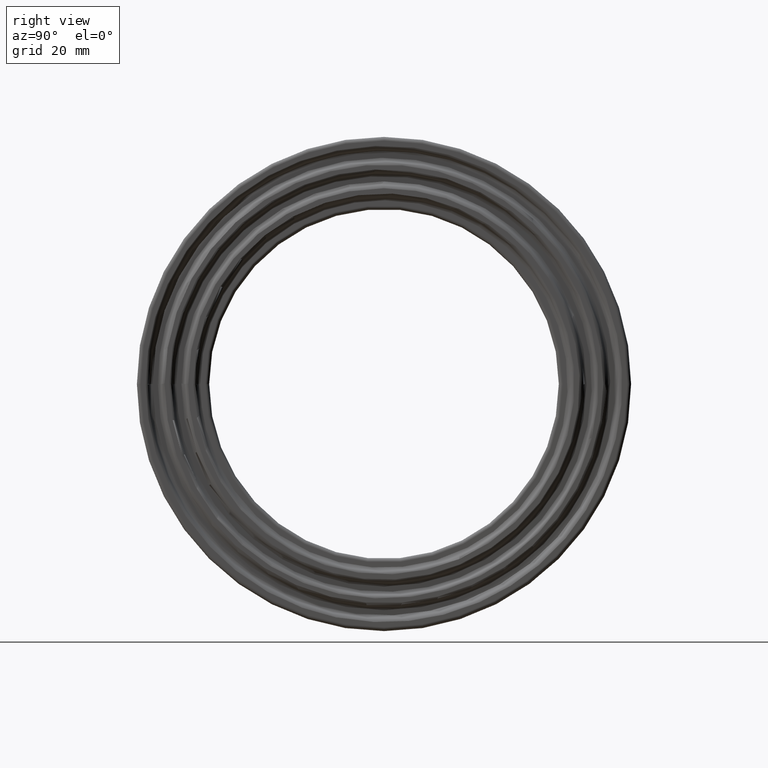
[diagram: clean part render]
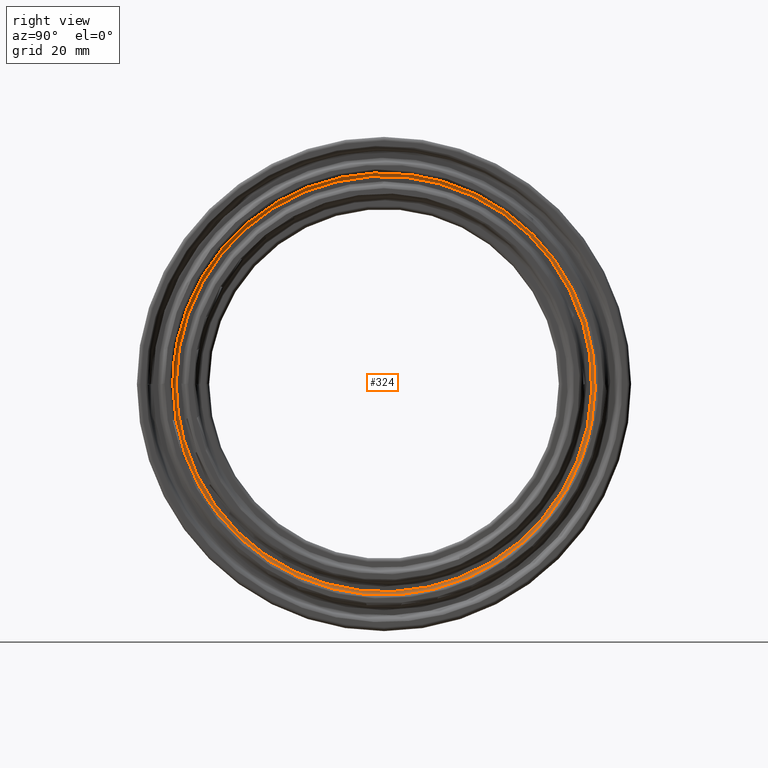
[diagram: same view with one face highlighted and labeled with its STEP entity id]
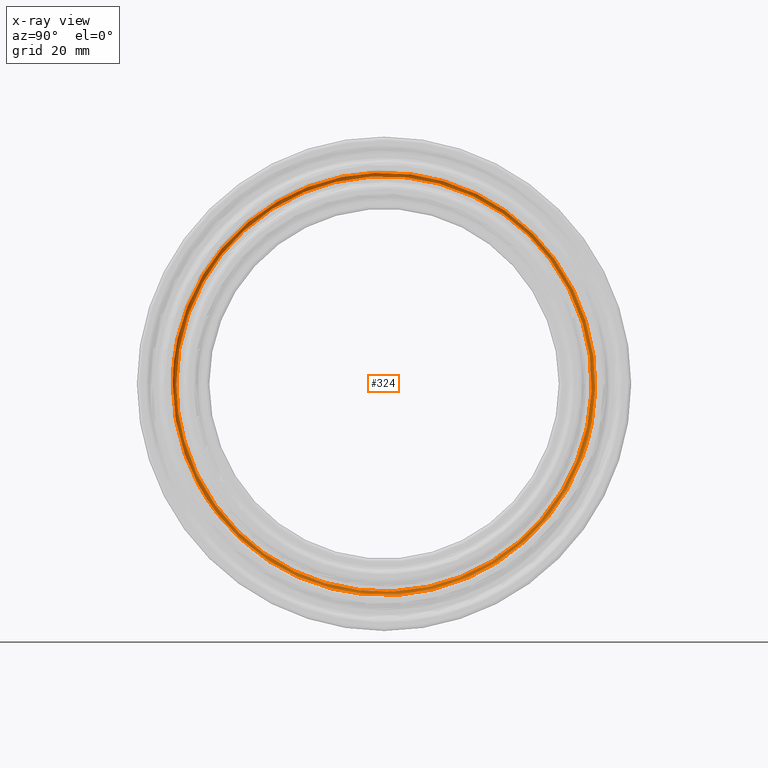
[diagram: x-ray of the same camera — body ghosted, the highlighted face saturated]
A machine part, right view. The second image highlights one B-rep face of the part: STEP entity #324.
The next image is the same camera in x-ray: the body ghosted, the highlighted face saturated — about 0% of this face is hidden behind the body in this view.
In plain terms, the highlighted face is a freeform B-spline surface patch.
Its self-contained STEP definition (entity closure, byte-faithful):
#19=B_SPLINE_SURFACE_WITH_KNOTS('',3,3,((#1938,#1939,#1940,#1941,#1942,
#1943,#1944,#1945,#1946,#1947,#1948,#1949,#1950,#1951,#1952,#1953,#1954,
#1955,#1956,#1957,#1958,#1959,#1960,#1961,#1962,#1963,#1964,#1965,#1966,
#1967,#1968,#1969,#1970,#1971,#1972,#1973,#1974,#1975,#1976,#1977,#1978,
#1979,#1980),(#1981,#1982,#1983,#1984,#1985,#1986,#1987,#1988,#1989,#1990,
#1991,#1992,#1993,#1994,#1995,#1996,#1997,#1998,#1999,#2000,#2001,#2002,
#2003,#2004,#2005,#2006,#2007,#2008,#2009,#2010,#2011,#2012,#2013,#2014,
#2015,#2016,#2017,#2018,#2019,#2020,#2021,#2022,#2023),(#2024,#2025,#2026,
#2027,#2028,#2029,#2030,#2031,#2032,#2033,#2034,#2035,#2036,#2037,#2038,
#2039,#2040,#2041,#2042,#2043,#2044,#2045,#2046,#2047,#2048,#2049,#2050,
#2051,#2052,#2053,#2054,#2055,#2056,#2057,#2058,#2059,#2060,#2061,#2062,
#2063,#2064,#2065,#2066),(#2067,#2068,#2069,#2070,#2071,#2072,#2073,#2074,
#2075,#2076,#2077,#2078,#2079,#2080,#2081,#2082,#2083,#2084,#2085,#2086,
#2087,#2088,#2089,#2090,#2091,#2092,#2093,#2094,#2095,#2096,#2097,#2098,
#2099,#2100,#2101,#2102,#2103,#2104,#2105,#2106,#2107,#2108,#2109),(#2110,
#2111,#2112,#2113,#2114,#2115,#2116,#2117,#2118,#2119,#2120,#2121,#2122,
#2123,#2124,#2125,#2126,#2127,#2128,#2129,#2130,#2131,#2132,#2133,#2134,
#2135,#2136,#2137,#2138,#2139,#2140,#2141,#2142,#2143,#2144,#2145,#2146,
#2147,#2148,#2149,#2150,#2151,#2152)),.UNSPECIFIED.,.F.,.T.,.F.,(4,1,4),
(4,1,1,1,1,1,1,1,1,1,1,1,1,1,1,1,1,1,1,1,1,1,1,1,1,1,1,1,1,1,1,1,1,1,1,
1,1,1,1,1,4),(0.,0.5,1.),(24.6803434564181,26.4432251318766,28.206106807335,
29.9689884827935,31.7318701582519,32.9071246085575,34.0823790588632,36.4328879594744,
37.60814240978,38.7833968600857,40.3504027938265,41.1339057606969,42.3091602110025,
43.4844146613082,44.6596691116138,45.8349235619194,48.1854324625307,50.5359413631419,
51.7111958134475,52.8864502637532,54.6493319392116,56.4122136146701,58.1750952901285,
59.0565361278577,59.9379769655869,61.2601382221808,62.5822994787746,63.4637403165038,
64.345181154233,65.2266219919623,65.6673424108269,66.9895036674207,68.7523853428791,
69.4134659711761,70.5152670183376,71.1763476466345,71.3967078560668,72.278148693796,
73.1595895315252,73.3799497409576,74.0410303692545),.UNSPECIFIED.);
#32=B_SPLINE_CURVE_WITH_KNOTS('',3,(#1895,#1896,#1897,#1898,#1899,#1900,
#1901,#1902,#1903,#1904,#1905,#1906,#1907,#1908,#1909,#1910,#1911,#1912,
#1913,#1914,#1915,#1916,#1917,#1918,#1919,#1920,#1921,#1922,#1923,#1924,
#1925,#1926,#1927,#1928,#1929,#1930,#1931,#1932,#1933,#1934,#1935,#1936,
#1937),.UNSPECIFIED.,.T.,.F.,(4,1,1,1,1,1,1,1,1,1,1,1,1,1,1,1,1,1,1,1,1,
1,1,1,1,1,1,1,1,1,1,1,1,1,1,1,1,1,1,1,4),(-74.0410303692545,-73.3799497409576,
-73.1595895315252,-72.278148693796,-71.3967078560668,-71.1763476466345,
-70.5152670183376,-69.4134659711761,-68.7523853428791,-66.9895036674207,
-65.6673424108269,-65.2266219919623,-64.345181154233,-63.4637403165038,
-62.5822994787746,-61.2601382221808,-59.9379769655869,-59.0565361278577,
-58.1750952901285,-56.4122136146701,-54.6493319392116,-52.8864502637532,
-51.7111958134475,-50.5359413631419,-48.1854324625307,-45.8349235619194,
-44.6596691116138,-43.4844146613082,-42.3091602110025,-41.1339057606969,
-40.3504027938265,-38.7833968600857,-37.60814240978,-36.4328879594744,-34.0823790588632,
-32.9071246085575,-31.7318701582519,-29.9689884827935,-28.206106807335,
-26.4432251318766,-24.6803434564181),.UNSPECIFIED.);
#33=B_SPLINE_CURVE_WITH_KNOTS('',3,(#2155,#2156,#2157,#2158,#2159,#2160,
#2161,#2162,#2163,#2164,#2165,#2166,#2167,#2168,#2169,#2170,#2171,#2172,
#2173,#2174,#2175,#2176,#2177,#2178,#2179,#2180,#2181,#2182,#2183,#2184,
#2185,#2186,#2187,#2188,#2189,#2190,#2191,#2192,#2193,#2194,#2195,#2196,
#2197),.UNSPECIFIED.,.T.,.F.,(4,1,1,1,1,1,1,1,1,1,1,1,1,1,1,1,1,1,1,1,1,
1,1,1,1,1,1,1,1,1,1,1,1,1,1,1,1,1,1,1,4),(24.6803434564181,26.4432251318766,
28.206106807335,29.9689884827935,31.7318701582519,32.9071246085575,34.0823790588632,
36.4328879594744,37.60814240978,38.7833968600857,40.3504027938265,41.1339057606969,
42.3091602110025,43.4844146613082,44.6596691116138,45.8349235619194,48.1854324625307,
50.5359413631419,51.7111958134475,52.8864502637532,54.6493319392116,56.4122136146701,
58.1750952901285,59.0565361278577,59.9379769655869,61.2601382221808,62.5822994787746,
63.4637403165038,64.345181154233,65.2266219919623,65.6673424108269,66.9895036674207,
68.7523853428791,69.4134659711761,70.5152670183376,71.1763476466345,71.3967078560668,
72.278148693796,73.1595895315252,73.3799497409576,74.0410303692545),
 .UNSPECIFIED.);
#85=FACE_OUTER_BOUND('',#128,.T.);
#128=EDGE_LOOP('',(#275,#276,#277,#278));
#162=CIRCLE('',#367,1.40000000000002);
#189=VERTEX_POINT('',#1894);
#190=VERTEX_POINT('',#2153);
#221=EDGE_CURVE('',#189,#189,#32,.T.);
#222=EDGE_CURVE('',#190,#189,#162,.T.);
#223=EDGE_CURVE('',#190,#190,#33,.T.);
#275=ORIENTED_EDGE('',*,*,#222,.T.);
#276=ORIENTED_EDGE('',*,*,#221,.T.);
#277=ORIENTED_EDGE('',*,*,#222,.F.);
#278=ORIENTED_EDGE('',*,*,#223,.T.);
#324=ADVANCED_FACE('',(#85),#19,.T.);
#367=AXIS2_PLACEMENT_3D('',#2154,#447,#448);
#447=DIRECTION('center_axis',(0.,0.00081182891062912,-0.999999670466856));
#448=DIRECTION('ref_axis',(-0.357142857142856,-0.9340494658155,-0.000758288610187939));
#1894=CARTESIAN_POINT('',(80.2,-79.0346345893353,-0.0641626224438236));
#1895=CARTESIAN_POINT('Ctrl Pts',(80.2,-79.0359069899736,-0.0636611747398195));
#1896=CARTESIAN_POINT('Ctrl Pts',(80.2,-79.0344235117402,2.14221662926721));
#1897=CARTESIAN_POINT('Ctrl Pts',(80.2,-78.916551578168,5.08110077902834));
#1898=CARTESIAN_POINT('Ctrl Pts',(80.2,-78.3432882024206,10.96529811685));
#1899=CARTESIAN_POINT('Ctrl Pts',(80.2,-77.2320801043647,17.5567382726492));
#1900=CARTESIAN_POINT('Ctrl Pts',(80.2,-75.3849196494802,23.9805777669698));
#1901=CARTESIAN_POINT('Ctrl Pts',(80.2,-73.3583369981146,29.5316094741855));
#1902=CARTESIAN_POINT('Ctrl Pts',(80.2,-70.7454806945997,35.6080453384973));
#1903=CARTESIAN_POINT('Ctrl Pts',(80.2,-66.711261189691,42.7024603909406));
#1904=CARTESIAN_POINT('Ctrl Pts',(80.2,-59.6906670431926,52.3107401768676));
#1905=CARTESIAN_POINT('Ctrl Pts',(80.2000000000001,-50.8230663103475,61.1924456219727));
#1906=CARTESIAN_POINT('Ctrl Pts',(80.1999999999999,-40.9131734396469,67.8348780980478));
#1907=CARTESIAN_POINT('Ctrl Pts',(80.2,-33.014929075914,71.9139861634977));
#1908=CARTESIAN_POINT('Ctrl Pts',(80.2000000000001,-26.222776174393,74.7314818975554));
#1909=CARTESIAN_POINT('Ctrl Pts',(80.2,-17.6875011933513,77.2035831813416));
#1910=CARTESIAN_POINT('Ctrl Pts',(80.2,-7.40327522892165,78.9509696361756));
#1911=CARTESIAN_POINT('Ctrl Pts',(80.2,4.38475743710647,79.2830174020007));
#1912=CARTESIAN_POINT('Ctrl Pts',(80.2,16.1641106870459,77.6402585901341));
#1913=CARTESIAN_POINT('Ctrl Pts',(80.2,26.1637598707477,74.7478268901621));
#1914=CARTESIAN_POINT('Ctrl Pts',(80.2000000000001,37.0311642579609,70.2683307201949));
#1915=CARTESIAN_POINT('Ctrl Pts',(80.1999999999999,49.7189688776017,62.2876840337266));
#1916=CARTESIAN_POINT('Ctrl Pts',(80.2000000000001,62.2662716497745,49.7487329383965));
#1917=CARTESIAN_POINT('Ctrl Pts',(80.1999999999999,70.7746053378915,36.2254306596438));
#1918=CARTESIAN_POINT('Ctrl Pts',(80.2000000000002,75.7857571141521,23.4303029109988));
#1919=CARTESIAN_POINT('Ctrl Pts',(80.1999999999999,79.3406261111925,7.93189650962315));
#1920=CARTESIAN_POINT('Ctrl Pts',(80.2,79.3151122607713,-11.9083727558933));
#1921=CARTESIAN_POINT('Ctrl Pts',(80.2,73.5046636802644,-30.8716798786516));
#1922=CARTESIAN_POINT('Ctrl Pts',(80.1999999999999,65.6392156018303,-44.5483069566757));
#1923=CARTESIAN_POINT('Ctrl Pts',(80.2000000000001,58.211199088035,-53.9034809174248));
#1924=CARTESIAN_POINT('Ctrl Pts',(80.1999999999999,49.5928442488041,-61.9086255455264));
#1925=CARTESIAN_POINT('Ctrl Pts',(80.2000000000001,40.8591232596019,-67.9063281318061));
#1926=CARTESIAN_POINT('Ctrl Pts',(80.2,30.3017540566498,-73.3165261919301));
#1927=CARTESIAN_POINT('Ctrl Pts',(80.1999999999999,19.1267475389757,-77.1122095130315));
#1928=CARTESIAN_POINT('Ctrl Pts',(80.2000000000001,5.99272135065327,-79.0975951052193));
#1929=CARTESIAN_POINT('Ctrl Pts',(80.1999999999998,-9.71439869450393,-79.136140654574));
#1930=CARTESIAN_POINT('Ctrl Pts',(80.2000000000002,-25.3776748950321,-75.5778914337486));
#1931=CARTESIAN_POINT('Ctrl Pts',(80.1999999999998,-39.5360131134935,-68.7738374777237));
#1932=CARTESIAN_POINT('Ctrl Pts',(80.2000000000001,-51.0597690238179,-60.9416011677678));
#1933=CARTESIAN_POINT('Ctrl Pts',(80.2,-62.2240307140923,-49.8032597963954));
#1934=CARTESIAN_POINT('Ctrl Pts',(80.2,-71.7951367104435,-34.6161391930233));
#1935=CARTESIAN_POINT('Ctrl Pts',(80.2,-77.6637828247308,-17.8697190184184));
#1936=CARTESIAN_POINT('Ctrl Pts',(80.2,-79.0398629319293,-5.94600198542535));
#1937=CARTESIAN_POINT('Ctrl Pts',(80.2,-79.0359069899736,-0.0636611747398195));
#1938=CARTESIAN_POINT('Ctrl Pts',(80.2,-79.0359069899736,-0.0636611747398195));
#1939=CARTESIAN_POINT('Ctrl Pts',(80.2,-79.0398629319293,-5.94600198542536));
#1940=CARTESIAN_POINT('Ctrl Pts',(80.2,-77.6637828247308,-17.8697190184184));
#1941=CARTESIAN_POINT('Ctrl Pts',(80.2,-71.7951367104435,-34.6161391930233));
#1942=CARTESIAN_POINT('Ctrl Pts',(80.2,-62.2240307140923,-49.8032597963954));
#1943=CARTESIAN_POINT('Ctrl Pts',(80.2000000000001,-51.0597690238179,-60.9416011677678));
#1944=CARTESIAN_POINT('Ctrl Pts',(80.1999999999998,-39.5360131134935,-68.7738374777237));
#1945=CARTESIAN_POINT('Ctrl Pts',(80.2000000000002,-25.3776748950321,-75.5778914337486));
#1946=CARTESIAN_POINT('Ctrl Pts',(80.1999999999998,-9.71439869450393,-79.136140654574));
#1947=CARTESIAN_POINT('Ctrl Pts',(80.2000000000001,5.99272135065327,-79.0975951052193));
#1948=CARTESIAN_POINT('Ctrl Pts',(80.1999999999999,19.1267475389757,-77.1122095130315));
#1949=CARTESIAN_POINT('Ctrl Pts',(80.2,30.3017540566498,-73.3165261919301));
#1950=CARTESIAN_POINT('Ctrl Pts',(80.2000000000001,40.8591232596019,-67.9063281318061));
#1951=CARTESIAN_POINT('Ctrl Pts',(80.1999999999999,49.5928442488041,-61.9086255455264));
#1952=CARTESIAN_POINT('Ctrl Pts',(80.2000000000001,58.211199088035,-53.9034809174248));
#1953=CARTESIAN_POINT('Ctrl Pts',(80.1999999999999,65.6392156018303,-44.5483069566757));
#1954=CARTESIAN_POINT('Ctrl Pts',(80.2,73.5046636802644,-30.8716798786516));
#1955=CARTESIAN_POINT('Ctrl Pts',(80.2,79.3151122607713,-11.9083727558933));
#1956=CARTESIAN_POINT('Ctrl Pts',(80.1999999999999,79.3406261111925,7.93189650962315));
#1957=CARTESIAN_POINT('Ctrl Pts',(80.2000000000002,75.7857571141521,23.4303029109988));
#1958=CARTESIAN_POINT('Ctrl Pts',(80.1999999999999,70.7746053378915,36.2254306596438));
#1959=CARTESIAN_POINT('Ctrl Pts',(80.2000000000001,62.2662716497745,49.7487329383965));
#1960=CARTESIAN_POINT('Ctrl Pts',(80.1999999999999,49.7189688776017,62.2876840337266));
#1961=CARTESIAN_POINT('Ctrl Pts',(80.2000000000001,37.0311642579609,70.2683307201949));
#1962=CARTESIAN_POINT('Ctrl Pts',(80.2,26.1637598707477,74.7478268901621));
#1963=CARTESIAN_POINT('Ctrl Pts',(80.2,16.1641106870459,77.6402585901341));
#1964=CARTESIAN_POINT('Ctrl Pts',(80.2,4.38475743710647,79.2830174020007));
#1965=CARTESIAN_POINT('Ctrl Pts',(80.2,-7.40327522892165,78.9509696361756));
#1966=CARTESIAN_POINT('Ctrl Pts',(80.2,-17.6875011933513,77.2035831813416));
#1967=CARTESIAN_POINT('Ctrl Pts',(80.2000000000001,-26.222776174393,74.7314818975554));
#1968=CARTESIAN_POINT('Ctrl Pts',(80.2,-33.014929075914,71.9139861634977));
#1969=CARTESIAN_POINT('Ctrl Pts',(80.1999999999999,-40.9131734396469,67.8348780980478));
#1970=CARTESIAN_POINT('Ctrl Pts',(80.2000000000001,-50.8230663103475,61.1924456219727));
#1971=CARTESIAN_POINT('Ctrl Pts',(80.2,-59.6906670431926,52.3107401768676));
#1972=CARTESIAN_POINT('Ctrl Pts',(80.2,-66.711261189691,42.7024603909406));
#1973=CARTESIAN_POINT('Ctrl Pts',(80.2,-70.7454806945997,35.6080453384973));
#1974=CARTESIAN_POINT('Ctrl Pts',(80.2,-73.3583369981146,29.5316094741855));
#1975=CARTESIAN_POINT('Ctrl Pts',(80.2,-75.3849196494802,23.9805777669698));
#1976=CARTESIAN_POINT('Ctrl Pts',(80.2,-77.2320801043647,17.5567382726492));
#1977=CARTESIAN_POINT('Ctrl Pts',(80.2,-78.3432882024206,10.96529811685));
#1978=CARTESIAN_POINT('Ctrl Pts',(80.2,-78.916551578168,5.08110077902834));
#1979=CARTESIAN_POINT('Ctrl Pts',(80.2,-79.0344235117402,2.14221662926721));
#1980=CARTESIAN_POINT('Ctrl Pts',(80.2,-79.0359069899736,-0.0636611747398195));
#1981=CARTESIAN_POINT('Ctrl Pts',(80.2,-79.3172157205648,-0.0638881794375414));
#1982=CARTESIAN_POINT('Ctrl Pts',(80.2,-79.3211858323509,-5.9671660840263));
#1983=CARTESIAN_POINT('Ctrl Pts',(80.2,-77.9402077918965,-17.9333209590336));
#1984=CARTESIAN_POINT('Ctrl Pts',(80.2,-72.0506737056137,-34.739347178399));
#1985=CARTESIAN_POINT('Ctrl Pts',(80.2,-62.4455017185552,-49.9805220134061));
#1986=CARTESIAN_POINT('Ctrl Pts',(80.2000000000001,-51.2415037042704,-61.1585075282063));
#1987=CARTESIAN_POINT('Ctrl Pts',(80.1999999999998,-39.6767323550235,-69.0186207243558));
#1988=CARTESIAN_POINT('Ctrl Pts',(80.2000000000002,-25.4679992608299,-75.8468924462979));
#1989=CARTESIAN_POINT('Ctrl Pts',(80.1999999999998,-9.74897550807512,-79.4178061435873));
#1990=CARTESIAN_POINT('Ctrl Pts',(80.2000000000001,6.01405104573557,-79.3791232975212));
#1991=CARTESIAN_POINT('Ctrl Pts',(80.1999999999999,19.1948244394425,-77.3866714957461));
#1992=CARTESIAN_POINT('Ctrl Pts',(80.2,30.4096063849306,-73.5774776454037));
#1993=CARTESIAN_POINT('Ctrl Pts',(80.2000000000001,41.004551267165,-68.1480242127833));
#1994=CARTESIAN_POINT('Ctrl Pts',(80.1999999999999,49.7693584823975,-62.1289727152698));
#1995=CARTESIAN_POINT('Ctrl Pts',(80.2000000000001,58.4183861231421,-54.0953389596501));
#1996=CARTESIAN_POINT('Ctrl Pts',(80.1999999999999,65.8728418591307,-44.7068657169166));
#1997=CARTESIAN_POINT('Ctrl Pts',(80.2,73.7662860462546,-30.9815591180339));
#1998=CARTESIAN_POINT('Ctrl Pts',(80.2,79.5974139702088,-11.9507585281034));
#1999=CARTESIAN_POINT('Ctrl Pts',(80.1999999999999,79.6230201088014,7.96012928187411));
#2000=CARTESIAN_POINT('Ctrl Pts',(80.2000000000002,76.0554977230188,23.5136959057609));
#2001=CARTESIAN_POINT('Ctrl Pts',(80.1999999999999,71.0265096068388,36.3543678542866));
#2002=CARTESIAN_POINT('Ctrl Pts',(80.2000000000001,62.4878937098503,49.9257996502997));
#2003=CARTESIAN_POINT('Ctrl Pts',(80.1999999999999,49.895930373489,62.5093830311154));
#2004=CARTESIAN_POINT('Ctrl Pts',(80.2000000000001,37.162967862862,70.5184326959796));
#2005=CARTESIAN_POINT('Ctrl Pts',(80.2,26.2568833254237,75.013873541513));
#2006=CARTESIAN_POINT('Ctrl Pts',(80.2,16.2216415662918,77.9165998788494));
#2007=CARTESIAN_POINT('Ctrl Pts',(80.2,4.40036601439102,79.5652056229169));
#2008=CARTESIAN_POINT('Ctrl Pts',(80.2,-7.42962757966777,79.2319759241183));
#2009=CARTESIAN_POINT('Ctrl Pts',(80.2,-17.7504539353396,77.478370384103));
#2010=CARTESIAN_POINT('Ctrl Pts',(80.2000000000001,-26.3161094008321,74.9974703506277));
#2011=CARTESIAN_POINT('Ctrl Pts',(80.2,-33.1324380695348,72.1699457934289));
#2012=CARTESIAN_POINT('Ctrl Pts',(80.1999999999999,-41.0587938694648,68.0763196555355));
#2013=CARTESIAN_POINT('Ctrl Pts',(80.2000000000001,-51.0039582851717,61.410244622668));
#2014=CARTESIAN_POINT('Ctrl Pts',(80.2,-59.9031208710327,52.4969280807219));
#2015=CARTESIAN_POINT('Ctrl Pts',(80.2,-66.9487034716048,42.8544487114287));
#2016=CARTESIAN_POINT('Ctrl Pts',(80.2,-70.99728233456,35.7347827946944));
#2017=CARTESIAN_POINT('Ctrl Pts',(80.2,-73.6194370229266,29.6367213789336));
#2018=CARTESIAN_POINT('Ctrl Pts',(80.2,-75.653235184399,24.0659269271978));
#2019=CARTESIAN_POINT('Ctrl Pts',(80.2,-77.50696778796,17.6192270794229));
#2020=CARTESIAN_POINT('Ctrl Pts',(80.2,-78.6221315048085,11.0043302580418));
#2021=CARTESIAN_POINT('Ctrl Pts',(80.2,-79.1974354510745,5.09918438320683));
#2022=CARTESIAN_POINT('Ctrl Pts',(80.2,-79.315726928645,2.1498410347832));
#2023=CARTESIAN_POINT('Ctrl Pts',(80.2,-79.3172157205648,-0.0638881794375414));
#2024=CARTESIAN_POINT('Ctrl Pts',(80.3750654140519,-79.8789777861749,-0.0643395063416049));
#2025=CARTESIAN_POINT('Ctrl Pts',(80.375065414052,-79.8829757678552,-6.00942622454241));
#2026=CARTESIAN_POINT('Ctrl Pts',(80.3750654140518,-78.4922173114411,-18.0603357120882));
#2027=CARTESIAN_POINT('Ctrl Pts',(80.3750654140519,-72.5609707017468,-34.9853865324662));
#2028=CARTESIAN_POINT('Ctrl Pts',(80.3750654140518,-62.887770368041,-50.3345081379654));
#2029=CARTESIAN_POINT('Ctrl Pts',(80.375065414052,-51.6044200604928,-61.5916615016243));
#2030=CARTESIAN_POINT('Ctrl Pts',(80.3750654140519,-39.9577400988291,-69.5074437914353));
#2031=CARTESIAN_POINT('Ctrl Pts',(80.3750654140519,-25.6483789581196,-76.3840753981219));
#2032=CARTESIAN_POINT('Ctrl Pts',(80.3750654140519,-9.81802010090382,-79.9802806339618));
#2033=CARTESIAN_POINT('Ctrl Pts',(80.3750654140519,6.05664515794039,-79.941324104059));
#2034=CARTESIAN_POINT('Ctrl Pts',(80.375065414052,19.3307713242428,-77.934760043797));
#2035=CARTESIAN_POINT('Ctrl Pts',(80.3750654140518,30.6249795567345,-74.0985897151965));
#2036=CARTESIAN_POINT('Ctrl Pts',(80.375065414052,41.2949646845575,-68.6306798656421));
#2037=CARTESIAN_POINT('Ctrl Pts',(80.3750654140518,50.121846446677,-62.5690029589138));
#2038=CARTESIAN_POINT('Ctrl Pts',(80.3750654140521,58.8321364056114,-54.4784623370075));
#2039=CARTESIAN_POINT('Ctrl Pts',(80.3750654140518,66.3393852510516,-45.0235006298579));
#2040=CARTESIAN_POINT('Ctrl Pts',(80.375065414052,74.2887317901663,-31.2009875586281));
#2041=CARTESIAN_POINT('Ctrl Pts',(80.3750654140518,80.161162702005,-12.0353970477914));
#2042=CARTESIAN_POINT('Ctrl Pts',(80.375065414052,80.1869461010356,8.01650349479605));
#2043=CARTESIAN_POINT('Ctrl Pts',(80.3750654140518,76.5941588089395,23.6802348083332));
#2044=CARTESIAN_POINT('Ctrl Pts',(80.375065414052,71.5295540896024,36.6118418509311));
#2045=CARTESIAN_POINT('Ctrl Pts',(80.3750654140519,62.9304606340408,50.2794021674581));
#2046=CARTESIAN_POINT('Ctrl Pts',(80.3750654140519,50.2493193427236,62.9521001437197));
#2047=CARTESIAN_POINT('Ctrl Pts',(80.3750654140519,37.4261726228188,71.0178796630879));
#2048=CARTESIAN_POINT('Ctrl Pts',(80.3750654140519,26.4428469094918,75.5451565264429));
#2049=CARTESIAN_POINT('Ctrl Pts',(80.3750654140519,16.336534423637,78.4684420568137));
#2050=CARTESIAN_POINT('Ctrl Pts',(80.3750654140519,4.43152561778954,80.1287241755803));
#2051=CARTESIAN_POINT('Ctrl Pts',(80.375065414052,-7.48224155039155,79.7931346390115));
#2052=CARTESIAN_POINT('Ctrl Pts',(80.3750654140519,-17.876175308969,78.027108392318));
#2053=CARTESIAN_POINT('Ctrl Pts',(80.3750654140519,-26.5024932336402,75.5286372222475));
#2054=CARTESIAN_POINT('Ctrl Pts',(80.3750654140519,-33.3670962030877,72.6810885848346));
#2055=CARTESIAN_POINT('Ctrl Pts',(80.3750654140519,-41.3495913366672,68.5584680578288));
#2056=CARTESIAN_POINT('Ctrl Pts',(80.3750654140519,-51.3651928444251,61.8451820116626));
#2057=CARTESIAN_POINT('Ctrl Pts',(80.3750654140519,-60.327383996658,52.8687340032521));
#2058=CARTESIAN_POINT('Ctrl Pts',(80.375065414052,-67.4228656719147,43.1579656096564));
#2059=CARTESIAN_POINT('Ctrl Pts',(80.3750654140518,-71.5001169543124,35.9878749915066));
#2060=CARTESIAN_POINT('Ctrl Pts',(80.3750654140519,-74.140846944482,29.8466186316501));
#2061=CARTESIAN_POINT('Ctrl Pts',(80.3750654140518,-76.1890428027763,24.2363836443175));
#2062=CARTESIAN_POINT('Ctrl Pts',(80.3750654140519,-78.055910959742,17.7440149339571));
#2063=CARTESIAN_POINT('Ctrl Pts',(80.3750654140519,-79.1789712733763,11.0822573874321));
#2064=CARTESIAN_POINT('Ctrl Pts',(80.3750654140519,-79.7583492915457,5.13530286430765));
#2065=CARTESIAN_POINT('Ctrl Pts',(80.3750654140519,-79.8774785430448,2.16506801298365));
#2066=CARTESIAN_POINT('Ctrl Pts',(80.3750654140519,-79.8789777861749,-0.0643395063416049));
#2067=CARTESIAN_POINT('Ctrl Pts',(80.8372479460837,-80.2431308452213,-0.0646357608967026));
#2068=CARTESIAN_POINT('Ctrl Pts',(80.8372479460837,-80.2471476832467,-6.03682752312725));
#2069=CARTESIAN_POINT('Ctrl Pts',(80.8372479460835,-78.8500482007813,-18.1426630367983));
#2070=CARTESIAN_POINT('Ctrl Pts',(80.8372479460837,-72.8917623067817,-35.1448811612813));
#2071=CARTESIAN_POINT('Ctrl Pts',(80.8372479460835,-63.1744636228099,-50.5639725414697));
#2072=CARTESIAN_POINT('Ctrl Pts',(80.8372479460837,-51.8396753690802,-61.8724449614624));
#2073=CARTESIAN_POINT('Ctrl Pts',(80.8372479460836,-40.1399040336831,-69.8243136656293));
#2074=CARTESIAN_POINT('Ctrl Pts',(80.8372479460837,-25.765296732764,-76.7322974911424));
#2075=CARTESIAN_POINT('Ctrl Pts',(80.8372479460835,-9.86278433876485,-80.3448955241373));
#2076=CARTESIAN_POINT('Ctrl Pts',(80.8372479460837,6.0842568699621,-80.3057606718805));
#2077=CARTESIAN_POINT('Ctrl Pts',(80.8372479460836,19.4188964989372,-78.2900510267899));
#2078=CARTESIAN_POINT('Ctrl Pts',(80.8372479460836,30.7645982260624,-74.4363871605948));
#2079=CARTESIAN_POINT('Ctrl Pts',(80.8372479460837,41.4832211381112,-68.9435563891334));
#2080=CARTESIAN_POINT('Ctrl Pts',(80.8372479460834,50.3503479661469,-62.8542343773788));
#2081=CARTESIAN_POINT('Ctrl Pts',(80.8372479460838,59.1003317304949,-54.7268330337721));
#2082=CARTESIAN_POINT('Ctrl Pts',(80.8372479460835,66.641811991352,-45.2287548906716));
#2083=CARTESIAN_POINT('Ctrl Pts',(80.8372479460837,74.6274050842498,-31.3432208970882));
#2084=CARTESIAN_POINT('Ctrl Pts',(80.8372479460835,80.5265966813603,-12.0902702473541));
#2085=CARTESIAN_POINT('Ctrl Pts',(80.8372479460837,80.552508014791,8.05305730719705));
#2086=CARTESIAN_POINT('Ctrl Pts',(80.8372479460837,76.9433368737375,23.7881789021878));
#2087=CARTESIAN_POINT('Ctrl Pts',(80.8372479460836,71.8556408664792,36.7787605675096));
#2088=CARTESIAN_POINT('Ctrl Pts',(80.8372479460838,63.2173534945355,50.5086052957976));
#2089=CARTESIAN_POINT('Ctrl Pts',(80.8372479460834,50.4783904047342,63.2390967544415));
#2090=CARTESIAN_POINT('Ctrl Pts',(80.8372479460838,37.5967938816395,71.3416314643579));
#2091=CARTESIAN_POINT('Ctrl Pts',(80.8372479460836,26.5633950501791,75.8895544848324));
#2092=CARTESIAN_POINT('Ctrl Pts',(80.8372479460836,16.4110006570301,78.8261649125391));
#2093=CARTESIAN_POINT('Ctrl Pts',(80.8372479460837,4.45174300372751,80.4940155139053));
#2094=CARTESIAN_POINT('Ctrl Pts',(80.8372479460836,-7.51636732346936,80.1568954470992));
#2095=CARTESIAN_POINT('Ctrl Pts',(80.8372479460836,-17.9576585850778,78.382820360578));
#2096=CARTESIAN_POINT('Ctrl Pts',(80.8372479460837,-26.6233113065154,75.8729597152722));
#2097=CARTESIAN_POINT('Ctrl Pts',(80.8372479460836,-33.5192141908606,73.0124251093278));
#2098=CARTESIAN_POINT('Ctrl Pts',(80.8372479460836,-41.5380971323435,68.8710138710033));
#2099=CARTESIAN_POINT('Ctrl Pts',(80.8372479460837,-51.5993560078802,62.1271199685271));
#2100=CARTESIAN_POINT('Ctrl Pts',(80.8372479460836,-60.6024028539712,53.1097580113994));
#2101=CARTESIAN_POINT('Ctrl Pts',(80.8372479460836,-67.7302342117763,43.3547109886148));
#2102=CARTESIAN_POINT('Ctrl Pts',(80.8372479460837,-71.8260767966391,36.1519329297703));
#2103=CARTESIAN_POINT('Ctrl Pts',(80.8372479460836,-74.4788353176823,29.982693931676));
#2104=CARTESIAN_POINT('Ctrl Pts',(80.8372479460836,-76.5363853260683,24.3468462272743));
#2105=CARTESIAN_POINT('Ctrl Pts',(80.8372479460836,-78.4117475748589,17.8249061444718));
#2106=CARTESIAN_POINT('Ctrl Pts',(80.8372479460837,-79.5399315662831,11.1328065674302));
#2107=CARTESIAN_POINT('Ctrl Pts',(80.8372479460836,-80.1219521352513,5.15870448405744));
#2108=CARTESIAN_POINT('Ctrl Pts',(80.8372479460837,-80.2416245309618,2.17493614993971));
#2109=CARTESIAN_POINT('Ctrl Pts',(80.8372479460837,-80.2431308452213,-0.0646357608967026));
#2110=CARTESIAN_POINT('Ctrl Pts',(81.1000000000001,-80.3435972946475,-0.0647144820802647));
#2111=CARTESIAN_POINT('Ctrl Pts',(81.1000000000002,-80.3476186897263,-6.04438168958814));
#2112=CARTESIAN_POINT('Ctrl Pts',(81.0999999999997,-78.9487706194185,-18.1653828400609));
#2113=CARTESIAN_POINT('Ctrl Pts',(81.1000000000003,-72.9830246942039,-35.1888812710475));
#2114=CARTESIAN_POINT('Ctrl Pts',(81.0999999999998,-63.2535597570484,-50.6272807060961));
#2115=CARTESIAN_POINT('Ctrl Pts',(81.1000000000002,-51.904579534056,-61.9499117449907));
#2116=CARTESIAN_POINT('Ctrl Pts',(81.0999999999998,-40.1901570716382,-69.9117364898303));
#2117=CARTESIAN_POINT('Ctrl Pts',(81.1000000000001,-25.7975617626505,-76.8283670674142));
#2118=CARTESIAN_POINT('Ctrl Pts',(81.1,-9.87512848773767,-80.4454893775085));
#2119=CARTESIAN_POINT('Ctrl Pts',(81.1,6.09187405108164,-80.4063060719354));
#2120=CARTESIAN_POINT('Ctrl Pts',(81.1,19.4432095531314,-78.3880712395878));
#2121=CARTESIAN_POINT('Ctrl Pts',(81.1,30.8031123822969,-74.5295863581876));
#2122=CARTESIAN_POINT('Ctrl Pts',(81.1000000000001,41.5351587652213,-69.0298737493092));
#2123=CARTESIAN_POINT('Ctrl Pts',(81.0999999999999,50.4133837235216,-62.9329360454596));
#2124=CARTESIAN_POINT('Ctrl Pts',(81.1000000000002,59.1743337387263,-54.7953421241651));
#2125=CARTESIAN_POINT('Ctrl Pts',(81.0999999999999,66.725250660045,-45.2853819307665));
#2126=CARTESIAN_POINT('Ctrl Pts',(81.1,74.720836679395,-31.3824679242856));
#2127=CARTESIAN_POINT('Ctrl Pts',(81.1000000000001,80.6274221622783,-12.105402994305));
#2128=CARTESIAN_POINT('Ctrl Pts',(81.0999999999999,80.6533581526623,8.06313387449106));
#2129=CARTESIAN_POINT('Ctrl Pts',(81.1,77.0396719939183,23.8179694934317));
#2130=CARTESIAN_POINT('Ctrl Pts',(81.1000000000001,71.9456080978045,36.8247993043569));
#2131=CARTESIAN_POINT('Ctrl Pts',(81.1,63.2964995910433,50.5718516727916));
#2132=CARTESIAN_POINT('Ctrl Pts',(81.1,50.5415951500867,63.3182662540562));
#2133=CARTESIAN_POINT('Ctrl Pts',(81.1,37.6438641853124,71.4309569024956));
#2134=CARTESIAN_POINT('Ctrl Pts',(81.1000000000001,26.5966529242953,75.9845686730091));
#2135=CARTESIAN_POINT('Ctrl Pts',(81.1,16.4315543292351,78.9248571640908));
#2136=CARTESIAN_POINT('Ctrl Pts',(81.1,4.45730553590389,80.5947962773294));
#2137=CARTESIAN_POINT('Ctrl Pts',(81.1,-7.52576627898226,80.2572546080293));
#2138=CARTESIAN_POINT('Ctrl Pts',(81.1000000000001,-17.9801501260369,78.4809567328989));
#2139=CARTESIAN_POINT('Ctrl Pts',(81.0999999999999,-26.6566456834661,75.9679532439744));
#2140=CARTESIAN_POINT('Ctrl Pts',(81.1000000000001,-33.5611782973918,73.1038405734484));
#2141=CARTESIAN_POINT('Ctrl Pts',(81.0999999999999,-41.5901032336867,68.9572415374754));
#2142=CARTESIAN_POINT('Ctrl Pts',(81.1000000000001,-51.663960450732,62.2049065515258));
#2143=CARTESIAN_POINT('Ctrl Pts',(81.1,-60.6782802628625,53.1762486573141));
#2144=CARTESIAN_POINT('Ctrl Pts',(81.1,-67.8150338013142,43.4089948708453));
#2145=CARTESIAN_POINT('Ctrl Pts',(81.1,-71.9160015720985,36.1971990210564));
#2146=CARTESIAN_POINT('Ctrl Pts',(81.1,-74.572088945968,30.020225356024));
#2147=CARTESIAN_POINT('Ctrl Pts',(81.1,-76.6322024643248,24.3773489339069));
#2148=CARTESIAN_POINT('Ctrl Pts',(81.1,-78.5099251523768,17.8472236646085));
#2149=CARTESIAN_POINT('Ctrl Pts',(81.1000000000001,-79.6395187679985,11.1467246934702));
#2150=CARTESIAN_POINT('Ctrl Pts',(81.1,-80.2222670853002,5.16517024161638));
#2151=CARTESIAN_POINT('Ctrl Pts',(81.1,-80.342089271493,2.17766072073514));
#2152=CARTESIAN_POINT('Ctrl Pts',(81.1000000000001,-80.3435972946475,-0.0647144820802647));
#2153=CARTESIAN_POINT('',(81.1,-80.3423038414771,-0.0652242264980867));
#2154=CARTESIAN_POINT('Origin',(81.6,-79.0346345893353,-0.0641626224438236));
#2155=CARTESIAN_POINT('Ctrl Pts',(81.1000000000001,-80.3435972946475,-0.0647144820802647));
#2156=CARTESIAN_POINT('Ctrl Pts',(81.1000000000002,-80.3476186897263,-6.04438168958814));
#2157=CARTESIAN_POINT('Ctrl Pts',(81.0999999999997,-78.9487706194185,-18.1653828400609));
#2158=CARTESIAN_POINT('Ctrl Pts',(81.1000000000003,-72.9830246942039,-35.1888812710475));
#2159=CARTESIAN_POINT('Ctrl Pts',(81.0999999999998,-63.2535597570484,-50.6272807060961));
#2160=CARTESIAN_POINT('Ctrl Pts',(81.1000000000002,-51.904579534056,-61.9499117449907));
#2161=CARTESIAN_POINT('Ctrl Pts',(81.0999999999998,-40.1901570716382,-69.9117364898303));
#2162=CARTESIAN_POINT('Ctrl Pts',(81.1000000000001,-25.7975617626505,-76.8283670674142));
#2163=CARTESIAN_POINT('Ctrl Pts',(81.1,-9.87512848773767,-80.4454893775085));
#2164=CARTESIAN_POINT('Ctrl Pts',(81.1,6.09187405108164,-80.4063060719354));
#2165=CARTESIAN_POINT('Ctrl Pts',(81.1,19.4432095531314,-78.3880712395878));
#2166=CARTESIAN_POINT('Ctrl Pts',(81.1,30.8031123822969,-74.5295863581876));
#2167=CARTESIAN_POINT('Ctrl Pts',(81.1000000000001,41.5351587652213,-69.0298737493092));
#2168=CARTESIAN_POINT('Ctrl Pts',(81.0999999999999,50.4133837235216,-62.9329360454596));
#2169=CARTESIAN_POINT('Ctrl Pts',(81.1000000000002,59.1743337387263,-54.7953421241651));
#2170=CARTESIAN_POINT('Ctrl Pts',(81.0999999999999,66.725250660045,-45.2853819307665));
#2171=CARTESIAN_POINT('Ctrl Pts',(81.1,74.720836679395,-31.3824679242856));
#2172=CARTESIAN_POINT('Ctrl Pts',(81.1000000000001,80.6274221622783,-12.105402994305));
#2173=CARTESIAN_POINT('Ctrl Pts',(81.0999999999999,80.6533581526623,8.06313387449106));
#2174=CARTESIAN_POINT('Ctrl Pts',(81.1,77.0396719939183,23.8179694934317));
#2175=CARTESIAN_POINT('Ctrl Pts',(81.1000000000001,71.9456080978045,36.8247993043569));
#2176=CARTESIAN_POINT('Ctrl Pts',(81.1,63.2964995910433,50.5718516727916));
#2177=CARTESIAN_POINT('Ctrl Pts',(81.1,50.5415951500867,63.3182662540562));
#2178=CARTESIAN_POINT('Ctrl Pts',(81.1,37.6438641853124,71.4309569024956));
#2179=CARTESIAN_POINT('Ctrl Pts',(81.1000000000001,26.5966529242953,75.9845686730091));
#2180=CARTESIAN_POINT('Ctrl Pts',(81.1,16.4315543292351,78.9248571640908));
#2181=CARTESIAN_POINT('Ctrl Pts',(81.1,4.45730553590389,80.5947962773294));
#2182=CARTESIAN_POINT('Ctrl Pts',(81.1,-7.52576627898226,80.2572546080293));
#2183=CARTESIAN_POINT('Ctrl Pts',(81.1000000000001,-17.9801501260369,78.4809567328989));
#2184=CARTESIAN_POINT('Ctrl Pts',(81.0999999999999,-26.6566456834661,75.9679532439744));
#2185=CARTESIAN_POINT('Ctrl Pts',(81.1000000000001,-33.5611782973918,73.1038405734484));
#2186=CARTESIAN_POINT('Ctrl Pts',(81.0999999999999,-41.5901032336867,68.9572415374754));
#2187=CARTESIAN_POINT('Ctrl Pts',(81.1000000000001,-51.663960450732,62.2049065515258));
#2188=CARTESIAN_POINT('Ctrl Pts',(81.1,-60.6782802628625,53.1762486573141));
#2189=CARTESIAN_POINT('Ctrl Pts',(81.1,-67.8150338013142,43.4089948708453));
#2190=CARTESIAN_POINT('Ctrl Pts',(81.1,-71.9160015720985,36.1971990210564));
#2191=CARTESIAN_POINT('Ctrl Pts',(81.1,-74.572088945968,30.020225356024));
#2192=CARTESIAN_POINT('Ctrl Pts',(81.1,-76.6322024643248,24.3773489339069));
#2193=CARTESIAN_POINT('Ctrl Pts',(81.1,-78.5099251523768,17.8472236646085));
#2194=CARTESIAN_POINT('Ctrl Pts',(81.1000000000001,-79.6395187679985,11.1467246934702));
#2195=CARTESIAN_POINT('Ctrl Pts',(81.1,-80.2222670853002,5.16517024161638));
#2196=CARTESIAN_POINT('Ctrl Pts',(81.1,-80.342089271493,2.17766072073514));
#2197=CARTESIAN_POINT('Ctrl Pts',(81.1000000000001,-80.3435972946475,-0.0647144820802647));